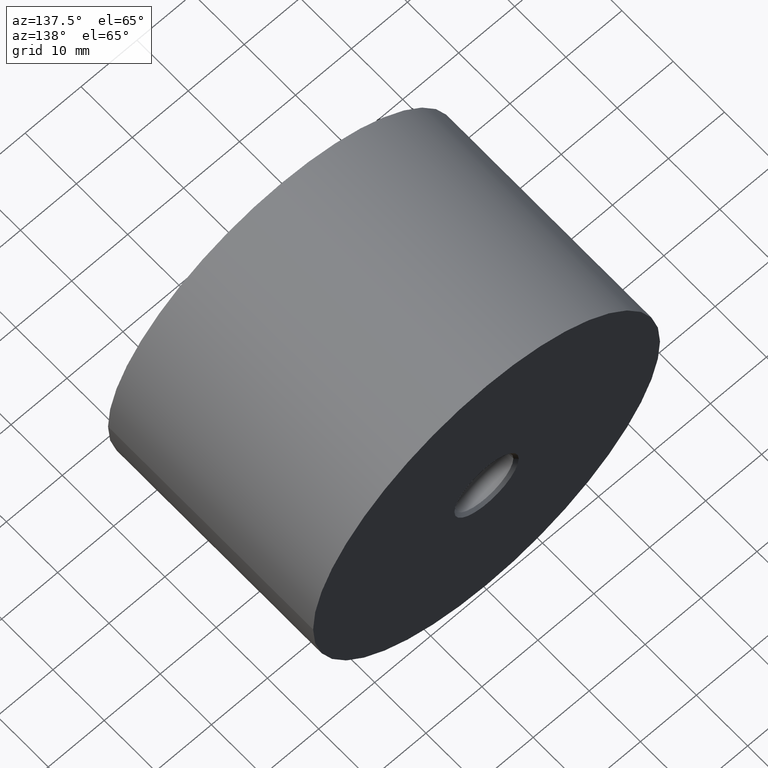
[diagram: clean part render]
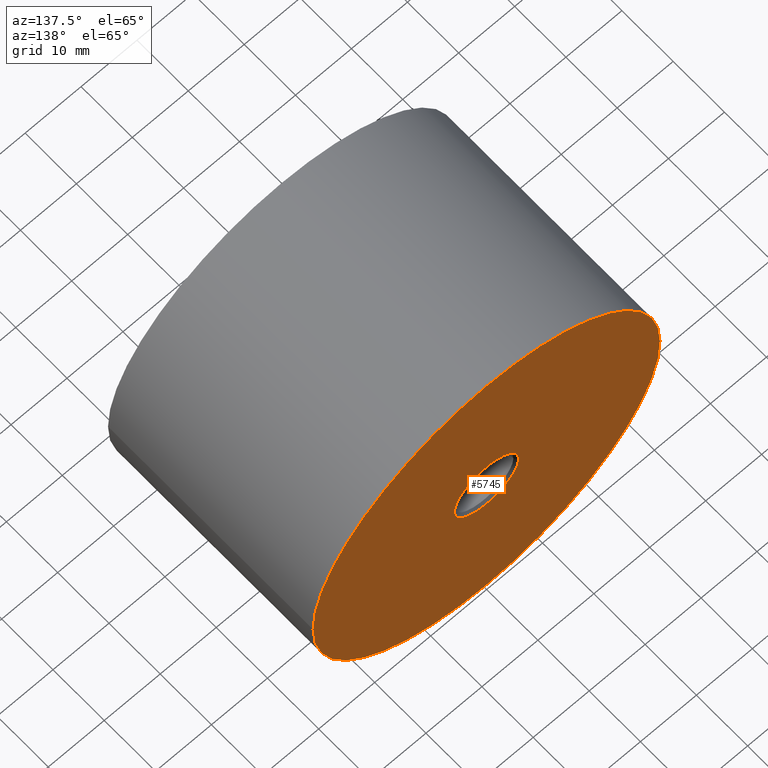
[diagram: same view with one face highlighted and labeled with its STEP entity id]
A machine part, auxiliary view. The second image highlights one B-rep face of the part: STEP entity #5745.
In plain terms, the highlighted planar face has unit normal (-0, 1, 0).
Its self-contained STEP definition (entity closure, byte-faithful):
#744 = FACE_BOUND ( 'NONE', #1439, .T. ) ;
#1208 = CARTESIAN_POINT ( 'NONE',  ( 5.749999999999998224, 40.00000000000000000, 7.041719095097282852E-16 ) ) ;
#1439 = EDGE_LOOP ( 'NONE', ( #11149, #6145 ) ) ;
#1859 = AXIS2_PLACEMENT_3D ( 'NONE', #12690, #13691, #3346 ) ;
#1921 = CARTESIAN_POINT ( 'NONE',  ( -3.469446951953614189E-15, 40.00000000000000000, 0.000000000000000000 ) ) ;
#2040 = CARTESIAN_POINT ( 'NONE',  ( -3.469446951953614189E-15, 40.00000000000000000, 0.000000000000000000 ) ) ;
#2061 = DIRECTION ( 'NONE',  ( -1.000000000000000000, 0.000000000000000000, 0.000000000000000000 ) ) ;
#2334 = CIRCLE ( 'NONE', #1859, 5.750000000000001776 ) ;
#3346 = DIRECTION ( 'NONE',  ( -1.000000000000000000, 0.000000000000000000, 0.000000000000000000 ) ) ;
#3379 = EDGE_LOOP ( 'NONE', ( #9450, #3591 ) ) ;
#3422 = VERTEX_POINT ( 'NONE', #5171 ) ;
#3591 = ORIENTED_EDGE ( 'NONE', *, *, #7056, .T. ) ;
#3639 = AXIS2_PLACEMENT_3D ( 'NONE', #6524, #8721, #7647 ) ;
#3858 = AXIS2_PLACEMENT_3D ( 'NONE', #1921, #8805, #2061 ) ;
#4066 = CIRCLE ( 'NONE', #10809, 31.00000000000001066 ) ;
#4146 = DIRECTION ( 'NONE',  ( -8.673617379884035472E-17, 1.000000000000000000, -0.000000000000000000 ) ) ;
#5171 = CARTESIAN_POINT ( 'NONE',  ( 31.00000000000000711, 40.00000000000000000, 3.796405077356795904E-15 ) ) ;
#5576 = EDGE_CURVE ( 'NONE', #9789, #11929, #2334, .T. ) ;
#5745 = ADVANCED_FACE ( 'NONE', ( #12175, #744 ), #14236, .T. ) ;
#5830 = VERTEX_POINT ( 'NONE', #8815 ) ;
#5832 = DIRECTION ( 'NONE',  ( -8.673617379884035472E-17, 1.000000000000000000, -0.000000000000000000 ) ) ;
#6145 = ORIENTED_EDGE ( 'NONE', *, *, #9267, .F. ) ;
#6524 = CARTESIAN_POINT ( 'NONE',  ( -31.00000000000001421, 40.00000000000000000, 0.000000000000000000 ) ) ;
#6962 = DIRECTION ( 'NONE',  ( -1.000000000000000000, 0.000000000000000000, 0.000000000000000000 ) ) ;
#7056 = EDGE_CURVE ( 'NONE', #3422, #5830, #4066, .T. ) ;
#7647 = DIRECTION ( 'NONE',  ( -1.000000000000000000, -8.673617379884035472E-17, 0.000000000000000000 ) ) ;
#8721 = DIRECTION ( 'NONE',  ( -8.673617379884035472E-17, 1.000000000000000000, 0.000000000000000000 ) ) ;
#8805 = DIRECTION ( 'NONE',  ( -8.673617379884035472E-17, 1.000000000000000000, -0.000000000000000000 ) ) ;
#8815 = CARTESIAN_POINT ( 'NONE',  ( -31.00000000000001421, 40.00000000000000000, 0.000000000000000000 ) ) ;
#9267 = EDGE_CURVE ( 'NONE', #11929, #9789, #10016, .T. ) ;
#9450 = ORIENTED_EDGE ( 'NONE', *, *, #10758, .T. ) ;
#9611 = CIRCLE ( 'NONE', #3858, 31.00000000000001066 ) ;
#9789 = VERTEX_POINT ( 'NONE', #13155 ) ;
#9955 = AXIS2_PLACEMENT_3D ( 'NONE', #12575, #5832, #6962 ) ;
#10016 = CIRCLE ( 'NONE', #9955, 5.750000000000001776 ) ;
#10758 = EDGE_CURVE ( 'NONE', #5830, #3422, #9611, .T. ) ;
#10809 = AXIS2_PLACEMENT_3D ( 'NONE', #2040, #4146, #14349 ) ;
#11149 = ORIENTED_EDGE ( 'NONE', *, *, #5576, .F. ) ;
#11929 = VERTEX_POINT ( 'NONE', #1208 ) ;
#12175 = FACE_OUTER_BOUND ( 'NONE', #3379, .T. ) ;
#12575 = CARTESIAN_POINT ( 'NONE',  ( -3.469446951953614189E-15, 40.00000000000000000, 0.000000000000000000 ) ) ;
#12690 = CARTESIAN_POINT ( 'NONE',  ( -3.469446951953614189E-15, 40.00000000000000000, 0.000000000000000000 ) ) ;
#13155 = CARTESIAN_POINT ( 'NONE',  ( -5.750000000000005329, 40.00000000000000000, 0.000000000000000000 ) ) ;
#13691 = DIRECTION ( 'NONE',  ( -8.673617379884035472E-17, 1.000000000000000000, -0.000000000000000000 ) ) ;
#14236 = PLANE ( 'NONE',  #3639 ) ;
#14349 = DIRECTION ( 'NONE',  ( -1.000000000000000000, 0.000000000000000000, 0.000000000000000000 ) ) ;